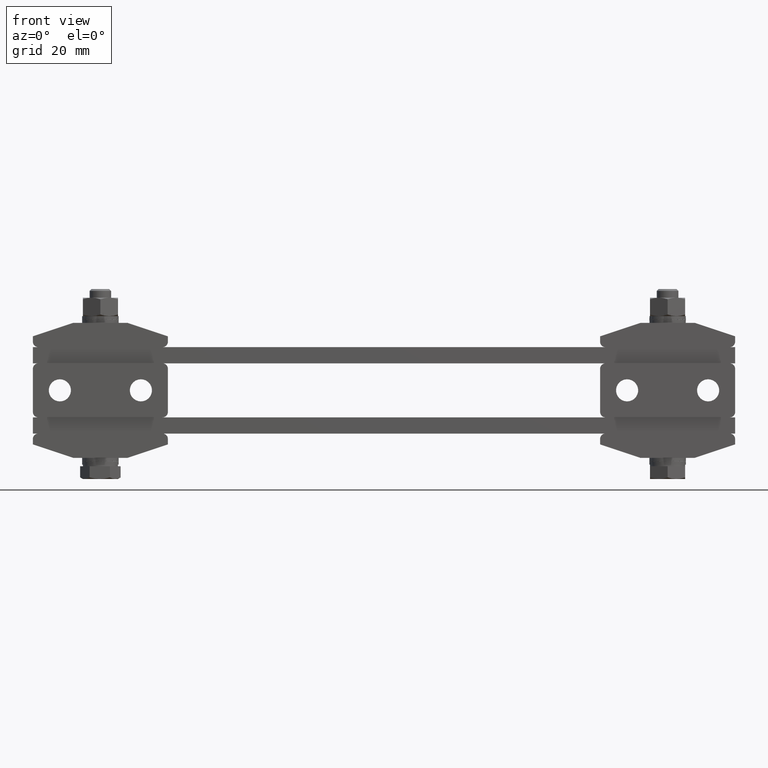
[diagram: clean part render]
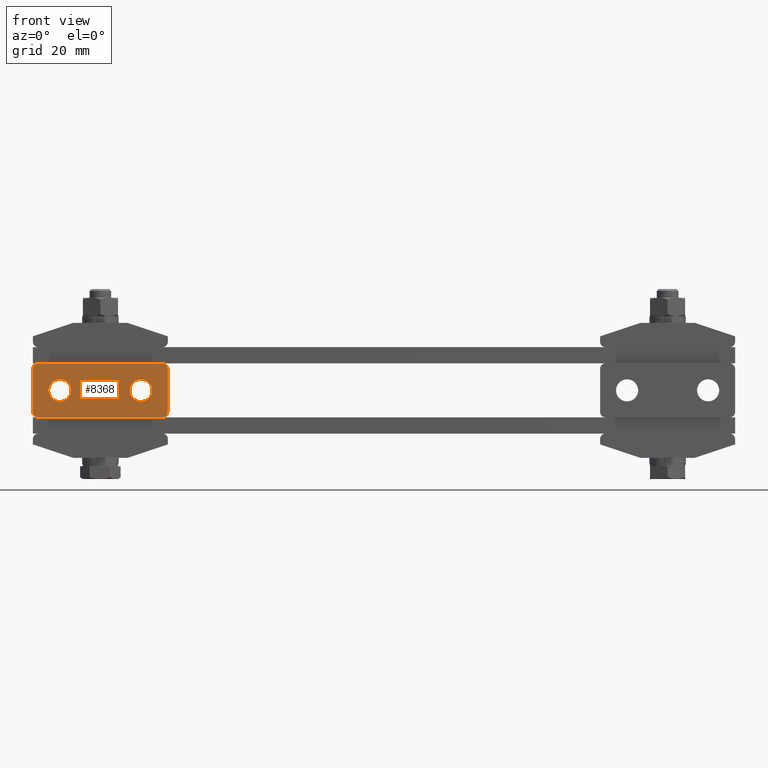
[diagram: same view with one face highlighted and labeled with its STEP entity id]
A machine part, front view. The second image highlights one B-rep face of the part: STEP entity #8368.
In plain terms, the highlighted planar face has unit normal (-0, 1, 0).
Its self-contained STEP definition (entity closure, byte-faithful):
#110 = FACE_BOUND ( 'NONE', #15927, .T. ) ;
#179 = CARTESIAN_POINT ( 'NONE',  ( -82.00000000000000000, -15.50000000000000000, 8.000000000000000000 ) ) ;
#517 = CIRCLE ( 'NONE', #16973, 4.099999999999999600 ) ;
#624 = DIRECTION ( 'NONE',  ( 7.771561172376090900E-016, -1.000000000000000000, -0.0000000000000000000 ) ) ;
#683 = DIRECTION ( 'NONE',  ( 7.771561172376090900E-016, -1.000000000000000000, -0.0000000000000000000 ) ) ;
#845 = DIRECTION ( 'NONE',  ( 0.0000000000000000000, 0.0000000000000000000, -1.000000000000000000 ) ) ;
#1054 = CARTESIAN_POINT ( 'NONE',  ( -120.0000000000000000, -15.50000000000000000, 16.00000000000000000 ) ) ;
#1156 = AXIS2_PLACEMENT_3D ( 'NONE', #179, #3591, #13210 ) ;
#1193 = CIRCLE ( 'NONE', #3615, 4.099999999999999600 ) ;
#1338 = ORIENTED_EDGE ( 'NONE', *, *, #7667, .T. ) ;
#1519 = VERTEX_POINT ( 'NONE', #13115 ) ;
#1698 = AXIS2_PLACEMENT_3D ( 'NONE', #17159, #683, #20377 ) ;
#2452 = CIRCLE ( 'NONE', #1156, 2.000000000000000000 ) ;
#2706 = EDGE_CURVE ( 'NONE', #20977, #16711, #1193, .T. ) ;
#2810 = CARTESIAN_POINT ( 'NONE',  ( -130.0000000000000000, -15.50000000000000000, 8.000000000000000000 ) ) ;
#2884 = EDGE_CURVE ( 'NONE', #20093, #9406, #19376, .T. ) ;
#3017 = LINE ( 'NONE', #11622, #15101 ) ;
#3132 = EDGE_CURVE ( 'NONE', #10633, #4007, #2452, .T. ) ;
#3140 = LINE ( 'NONE', #7477, #4927 ) ;
#3512 = ORIENTED_EDGE ( 'NONE', *, *, #10970, .T. ) ;
#3591 = DIRECTION ( 'NONE',  ( 7.771561172376090900E-016, -1.000000000000000000, -0.0000000000000000000 ) ) ;
#3615 = AXIS2_PLACEMENT_3D ( 'NONE', #1054, #7908, #19239 ) ;
#3844 = DIRECTION ( 'NONE',  ( 0.0000000000000000000, 0.0000000000000000000, -1.000000000000000000 ) ) ;
#3872 = VERTEX_POINT ( 'NONE', #2810 ) ;
#4007 = VERTEX_POINT ( 'NONE', #18949 ) ;
#4009 = DIRECTION ( 'NONE',  ( -7.771561172376090900E-016, 1.000000000000000000, 0.0000000000000000000 ) ) ;
#4019 = AXIS2_PLACEMENT_3D ( 'NONE', #13671, #20246, #3844 ) ;
#4057 = DIRECTION ( 'NONE',  ( -1.000000000000000000, 1.665334536937729900E-016, 0.0000000000000000000 ) ) ;
#4128 = CARTESIAN_POINT ( 'NONE',  ( -128.0000000000000000, -15.50000000000000000, 8.000000000000000000 ) ) ;
#4187 = LINE ( 'NONE', #20392, #17524 ) ;
#4742 = CARTESIAN_POINT ( 'NONE',  ( -80.00000000000000000, -15.50000000000000000, 6.000000000000000000 ) ) ;
#4927 = VECTOR ( 'NONE', #19276, 1000.000000000000000 ) ;
#5071 = DIRECTION ( 'NONE',  ( 0.0000000000000000000, 0.0000000000000000000, -1.000000000000000000 ) ) ;
#5173 = EDGE_CURVE ( 'NONE', #16704, #7298, #8139, .T. ) ;
#5183 = ORIENTED_EDGE ( 'NONE', *, *, #15344, .F. ) ;
#5444 = DIRECTION ( 'NONE',  ( 0.0000000000000000000, 0.0000000000000000000, -1.000000000000000000 ) ) ;
#5907 = DIRECTION ( 'NONE',  ( -7.771561172376090900E-016, 1.000000000000000000, 0.0000000000000000000 ) ) ;
#5921 = VERTEX_POINT ( 'NONE', #10206 ) ;
#6724 = LINE ( 'NONE', #4742, #8249 ) ;
#6915 = AXIS2_PLACEMENT_3D ( 'NONE', #12303, #5907, #14373 ) ;
#7043 = CIRCLE ( 'NONE', #15943, 2.000000000000000000 ) ;
#7298 = VERTEX_POINT ( 'NONE', #12528 ) ;
#7477 = CARTESIAN_POINT ( 'NONE',  ( -130.0000000000000000, -15.50000000000000000, 6.000000000000000000 ) ) ;
#7667 = EDGE_CURVE ( 'NONE', #3872, #5921, #7043, .T. ) ;
#7908 = DIRECTION ( 'NONE',  ( -7.771561172376090900E-016, 1.000000000000000000, 0.0000000000000000000 ) ) ;
#8139 = CIRCLE ( 'NONE', #19289, 4.099999999999999600 ) ;
#8159 = DIRECTION ( 'NONE',  ( 0.0000000000000000000, 0.0000000000000000000, 1.000000000000000000 ) ) ;
#8217 = ORIENTED_EDGE ( 'NONE', *, *, #11894, .T. ) ;
#8249 = VECTOR ( 'NONE', #8159, 1000.000000000000000 ) ;
#8366 = CARTESIAN_POINT ( 'NONE',  ( -89.99999999999998600, -15.50000000000000000, 20.10000000000000100 ) ) ;
#8368 = ADVANCED_FACE ( 'NONE', ( #110, #15747, #9783 ), #13896, .F. ) ;
#9406 = VERTEX_POINT ( 'NONE', #10298 ) ;
#9783 = FACE_OUTER_BOUND ( 'NONE', #15860, .T. ) ;
#10009 = CIRCLE ( 'NONE', #1698, 2.000000000000001800 ) ;
#10173 = EDGE_LOOP ( 'NONE', ( #3512, #15495 ) ) ;
#10177 = EDGE_CURVE ( 'NONE', #7298, #16704, #15715, .T. ) ;
#10200 = AXIS2_PLACEMENT_3D ( 'NONE', #15061, #13247, #5071 ) ;
#10206 = CARTESIAN_POINT ( 'NONE',  ( -128.0000000000000000, -15.50000000000000000, 6.000000000000000000 ) ) ;
#10298 = CARTESIAN_POINT ( 'NONE',  ( -82.00000000000000000, -15.50000000000000000, 26.00000000000000000 ) ) ;
#10539 = EDGE_CURVE ( 'NONE', #14447, #1519, #10009, .T. ) ;
#10633 = VERTEX_POINT ( 'NONE', #14607 ) ;
#10970 = EDGE_CURVE ( 'NONE', #16711, #20977, #517, .T. ) ;
#11622 = CARTESIAN_POINT ( 'NONE',  ( -80.00000000000000000, -15.50000000000000000, 26.00000000000000000 ) ) ;
#11894 = EDGE_CURVE ( 'NONE', #9406, #14447, #3017, .T. ) ;
#12303 = CARTESIAN_POINT ( 'NONE',  ( -90.00000000000000000, -15.50000000000000000, 16.00000000000000000 ) ) ;
#12528 = CARTESIAN_POINT ( 'NONE',  ( -90.00000000000000000, -15.50000000000000000, 11.90000000000000000 ) ) ;
#13115 = CARTESIAN_POINT ( 'NONE',  ( -130.0000000000000000, -15.50000000000000000, 24.00000000000000000 ) ) ;
#13210 = DIRECTION ( 'NONE',  ( 0.0000000000000000000, 0.0000000000000000000, -1.000000000000000000 ) ) ;
#13247 = DIRECTION ( 'NONE',  ( 7.771561172376090900E-016, -1.000000000000000000, -0.0000000000000000000 ) ) ;
#13273 = DIRECTION ( 'NONE',  ( -1.000000000000000000, 1.665334536937729900E-016, 0.0000000000000000000 ) ) ;
#13498 = CARTESIAN_POINT ( 'NONE',  ( -90.00000000000000000, -15.50000000000000000, 16.00000000000000000 ) ) ;
#13626 = DIRECTION ( 'NONE',  ( -7.771561172376090900E-016, 1.000000000000000000, 0.0000000000000000000 ) ) ;
#13671 = CARTESIAN_POINT ( 'NONE',  ( -80.00000000000000000, -15.50000000000000000, 6.000000000000000000 ) ) ;
#13896 = PLANE ( 'NONE',  #4019 ) ;
#14050 = CARTESIAN_POINT ( 'NONE',  ( -120.0000000000000000, -15.50000000000000000, 16.00000000000000000 ) ) ;
#14373 = DIRECTION ( 'NONE',  ( 0.0000000000000000000, 0.0000000000000000000, -1.000000000000000000 ) ) ;
#14447 = VERTEX_POINT ( 'NONE', #16270 ) ;
#14509 = ORIENTED_EDGE ( 'NONE', *, *, #20699, .T. ) ;
#14607 = CARTESIAN_POINT ( 'NONE',  ( -82.00000000000000000, -15.50000000000000000, 6.000000000000000000 ) ) ;
#15061 = CARTESIAN_POINT ( 'NONE',  ( -82.00000000000000000, -15.50000000000000000, 24.00000000000000000 ) ) ;
#15101 = VECTOR ( 'NONE', #13273, 1000.000000000000000 ) ;
#15344 = EDGE_CURVE ( 'NONE', #10633, #5921, #4187, .T. ) ;
#15487 = EDGE_CURVE ( 'NONE', #3872, #1519, #3140, .T. ) ;
#15495 = ORIENTED_EDGE ( 'NONE', *, *, #2706, .T. ) ;
#15715 = CIRCLE ( 'NONE', #6915, 4.099999999999999600 ) ;
#15747 = FACE_BOUND ( 'NONE', #10173, .T. ) ;
#15860 = EDGE_LOOP ( 'NONE', ( #8217, #18249, #18037, #1338, #5183, #21068, #14509, #18523 ) ) ;
#15927 = EDGE_LOOP ( 'NONE', ( #17074, #20989 ) ) ;
#15943 = AXIS2_PLACEMENT_3D ( 'NONE', #4128, #624, #20457 ) ;
#16103 = CARTESIAN_POINT ( 'NONE',  ( -119.9999999999999900, -15.50000000000000000, 20.10000000000000100 ) ) ;
#16270 = CARTESIAN_POINT ( 'NONE',  ( -128.0000000000000000, -15.50000000000000000, 26.00000000000000000 ) ) ;
#16704 = VERTEX_POINT ( 'NONE', #8366 ) ;
#16711 = VERTEX_POINT ( 'NONE', #19980 ) ;
#16973 = AXIS2_PLACEMENT_3D ( 'NONE', #14050, #4009, #845 ) ;
#17074 = ORIENTED_EDGE ( 'NONE', *, *, #10177, .T. ) ;
#17159 = CARTESIAN_POINT ( 'NONE',  ( -128.0000000000000000, -15.50000000000000000, 24.00000000000000000 ) ) ;
#17524 = VECTOR ( 'NONE', #4057, 1000.000000000000000 ) ;
#18037 = ORIENTED_EDGE ( 'NONE', *, *, #15487, .F. ) ;
#18249 = ORIENTED_EDGE ( 'NONE', *, *, #10539, .T. ) ;
#18523 = ORIENTED_EDGE ( 'NONE', *, *, #2884, .T. ) ;
#18949 = CARTESIAN_POINT ( 'NONE',  ( -80.00000000000000000, -15.50000000000000000, 8.000000000000000000 ) ) ;
#19239 = DIRECTION ( 'NONE',  ( 0.0000000000000000000, 0.0000000000000000000, -1.000000000000000000 ) ) ;
#19276 = DIRECTION ( 'NONE',  ( 0.0000000000000000000, 0.0000000000000000000, 1.000000000000000000 ) ) ;
#19289 = AXIS2_PLACEMENT_3D ( 'NONE', #13498, #13626, #5444 ) ;
#19376 = CIRCLE ( 'NONE', #10200, 2.000000000000001800 ) ;
#19509 = CARTESIAN_POINT ( 'NONE',  ( -80.00000000000000000, -15.50000000000000000, 24.00000000000000000 ) ) ;
#19980 = CARTESIAN_POINT ( 'NONE',  ( -120.0000000000000000, -15.50000000000000000, 11.90000000000000000 ) ) ;
#20093 = VERTEX_POINT ( 'NONE', #19509 ) ;
#20246 = DIRECTION ( 'NONE',  ( -7.771561172376090900E-016, 1.000000000000000000, 0.0000000000000000000 ) ) ;
#20377 = DIRECTION ( 'NONE',  ( 0.0000000000000000000, 0.0000000000000000000, -1.000000000000000000 ) ) ;
#20392 = CARTESIAN_POINT ( 'NONE',  ( -80.00000000000000000, -15.50000000000000000, 6.000000000000000000 ) ) ;
#20457 = DIRECTION ( 'NONE',  ( 0.0000000000000000000, 0.0000000000000000000, -1.000000000000000000 ) ) ;
#20699 = EDGE_CURVE ( 'NONE', #4007, #20093, #6724, .T. ) ;
#20977 = VERTEX_POINT ( 'NONE', #16103 ) ;
#20989 = ORIENTED_EDGE ( 'NONE', *, *, #5173, .T. ) ;
#21068 = ORIENTED_EDGE ( 'NONE', *, *, #3132, .T. ) ;